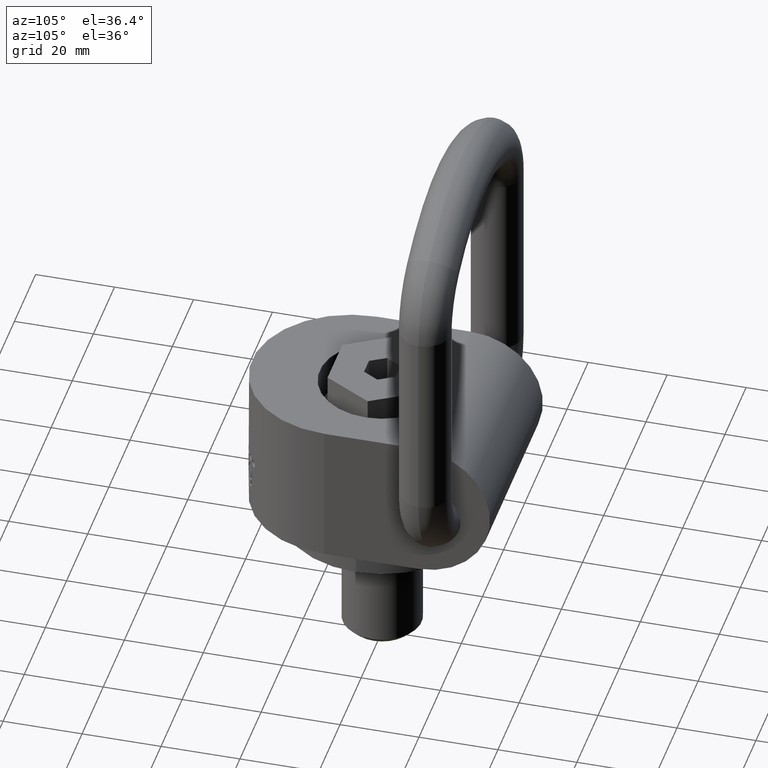
[diagram: clean part render]
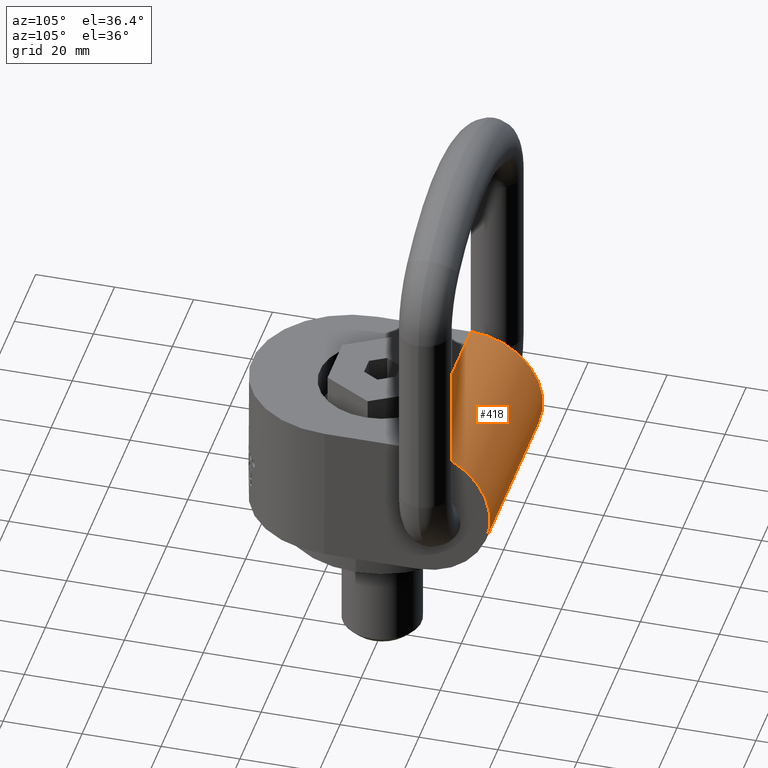
[diagram: same view with one face highlighted and labeled with its STEP entity id]
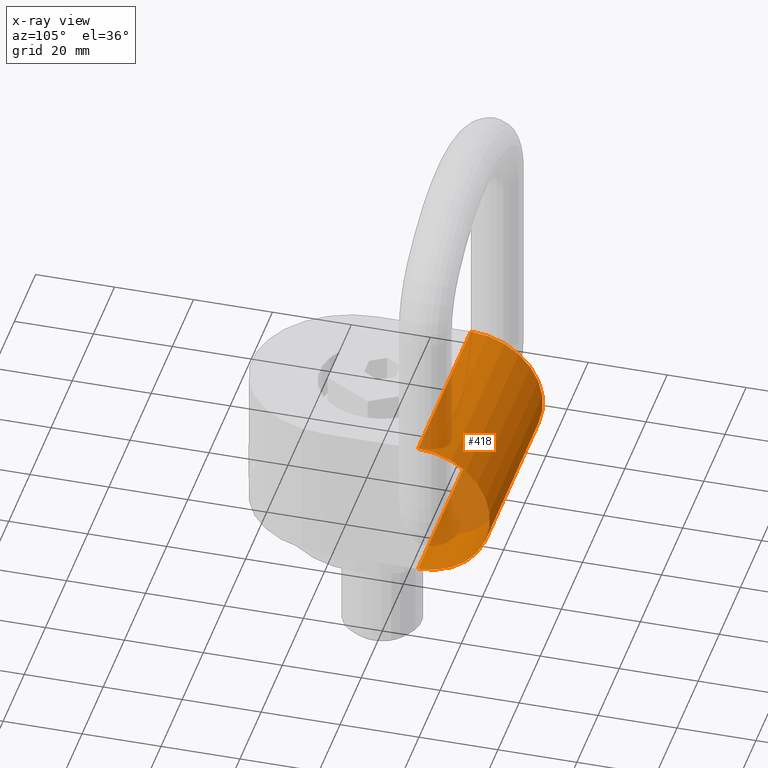
[diagram: x-ray of the same camera — body ghosted, the highlighted face saturated]
A machine part, auxiliary view. The second image highlights one B-rep face of the part: STEP entity #418.
The next image is the same camera in x-ray: the body ghosted, the highlighted face saturated — about 21% of this face is hidden behind the body in this view.
In plain terms, the highlighted cylindrical surface (partial cylindrical patch) has radius 18.25 mm, axis along (-1, 0, 0).
Its self-contained STEP definition (entity closure, byte-faithful):
#309=FACE_OUTER_BOUND('',#644,.T.);
#418=ADVANCED_FACE('',(#309),#547,.T.);
#547=CYLINDRICAL_SURFACE('',#2509,18.25);
#644=EDGE_LOOP('',(#1224,#1225,#1226,#1227,#1228,#1229,#1230,#1231));
#802=LINE('',#3878,#933);
#805=LINE('',#3887,#936);
#807=LINE('',#3897,#938);
#808=LINE('',#3900,#939);
#809=LINE('',#3903,#940);
#933=VECTOR('',#2682,1.);
#936=VECTOR('',#2693,1.);
#938=VECTOR('',#2697,1.);
#939=VECTOR('',#2700,1.);
#940=VECTOR('',#2703,1.);
#1122=CIRCLE('',#2507,18.25);
#1123=CIRCLE('',#2508,18.25);
#1224=ORIENTED_EDGE('',*,*,#2063,.F.);
#1225=ORIENTED_EDGE('',*,*,#2064,.F.);
#1226=ORIENTED_EDGE('',*,*,#2065,.F.);
#1227=ORIENTED_EDGE('',*,*,#2061,.T.);
#1228=ORIENTED_EDGE('',*,*,#2066,.T.);
#1229=ORIENTED_EDGE('',*,*,#2056,.T.);
#1230=ORIENTED_EDGE('',*,*,#2067,.T.);
#1231=ORIENTED_EDGE('',*,*,#2068,.F.);
#1841=VERTEX_POINT('',#3875);
#1842=VERTEX_POINT('',#3877);
#1844=VERTEX_POINT('',#3886);
#1845=VERTEX_POINT('',#3888);
#1846=VERTEX_POINT('',#3895);
#1847=VERTEX_POINT('',#3896);
#1848=VERTEX_POINT('',#3898);
#1849=VERTEX_POINT('',#3902);
#2056=EDGE_CURVE('',#1841,#1842,#802,.T.);
#2061=EDGE_CURVE('',#1845,#1844,#805,.T.);
#2063=EDGE_CURVE('',#1846,#1847,#2331,.T.);
#2064=EDGE_CURVE('',#1848,#1846,#807,.T.);
#2065=EDGE_CURVE('',#1845,#1848,#1122,.T.);
#2066=EDGE_CURVE('',#1844,#1841,#808,.T.);
#2067=EDGE_CURVE('',#1842,#1849,#1123,.T.);
#2068=EDGE_CURVE('',#1847,#1849,#809,.T.);
#2331=B_SPLINE_CURVE_WITH_KNOTS('',3,(#3891,#3892,#3893,#3894),
 .UNSPECIFIED.,.F.,.F.,(4,4),(0.,1.),.UNSPECIFIED.);
#2507=AXIS2_PLACEMENT_3D('',#3899,#2698,#2699);
#2508=AXIS2_PLACEMENT_3D('',#3901,#2701,#2702);
#2509=AXIS2_PLACEMENT_3D('',#3904,#2704,#2705);
#2682=DIRECTION('',(-1.,0.,0.));
#2693=DIRECTION('',(-1.,0.,0.));
#2697=DIRECTION('',(-1.,0.,0.));
#2698=DIRECTION('',(1.,0.,0.));
#2699=DIRECTION('',(0.,1.,0.));
#2700=DIRECTION('',(-1.,0.,0.));
#2701=DIRECTION('',(1.,0.,0.));
#2702=DIRECTION('',(0.,1.,0.));
#2703=DIRECTION('',(-1.,0.,0.));
#2704=DIRECTION('',(-1.,0.,0.));
#2705=DIRECTION('',(0.,0.,1.));
#3875=CARTESIAN_POINT('',(-19.4148783153539,15.75,4.03032308381713E-15));
#3877=CARTESIAN_POINT('',(-25.,15.75,3.5527136788005E-15));
#3878=CARTESIAN_POINT('',(25.,15.75,3.5527136788005E-15));
#3886=CARTESIAN_POINT('',(19.4148783153539,15.75,4.03032308381713E-15));
#3887=CARTESIAN_POINT('',(25.,15.75,3.5527136788005E-15));
#3888=CARTESIAN_POINT('',(25.,15.75,3.5527136788005E-15));
#3891=CARTESIAN_POINT('',(1.8338827231327,15.75,36.5));
#3892=CARTESIAN_POINT('',(0.611294241044232,15.8923545330034,36.5));
#3893=CARTESIAN_POINT('',(-0.611294241044232,15.8923545330034,36.5));
#3894=CARTESIAN_POINT('',(-1.8338827231327,15.75,36.5));
#3895=CARTESIAN_POINT('',(1.8338827231327,15.75,36.5));
#3896=CARTESIAN_POINT('',(-1.8338827231327,15.75,36.5));
#3897=CARTESIAN_POINT('',(25.,15.75,36.5));
#3898=CARTESIAN_POINT('',(25.,15.75,36.5));
#3899=CARTESIAN_POINT('',(25.,15.75,18.25));
#3900=CARTESIAN_POINT('',(25.,15.75,3.5527136788005E-15));
#3901=CARTESIAN_POINT('',(-25.,15.75,18.25));
#3902=CARTESIAN_POINT('',(-25.,15.75,36.5));
#3903=CARTESIAN_POINT('',(25.,15.75,36.5));
#3904=CARTESIAN_POINT('',(25.,15.75,18.25));